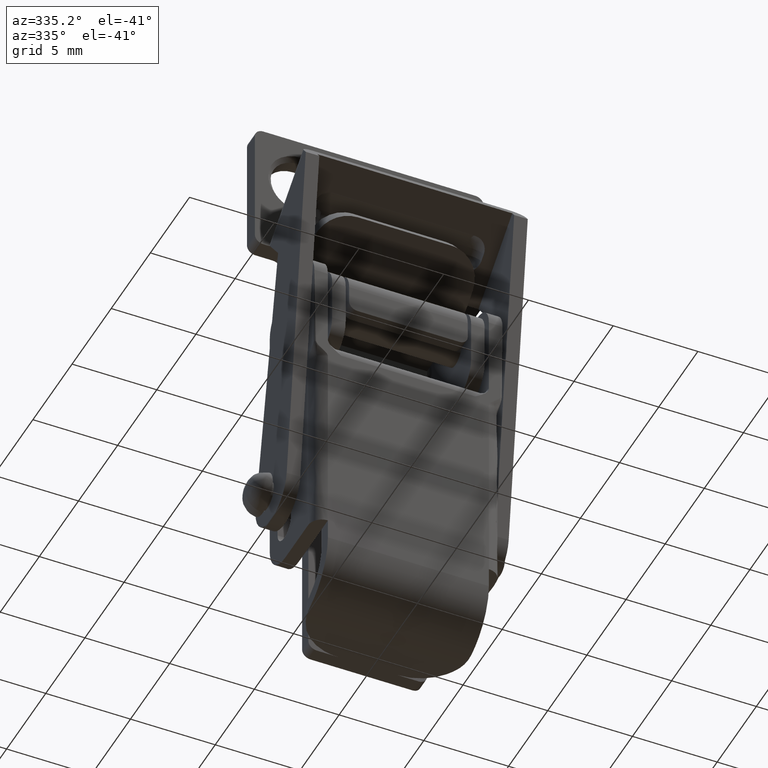
[diagram: clean part render]
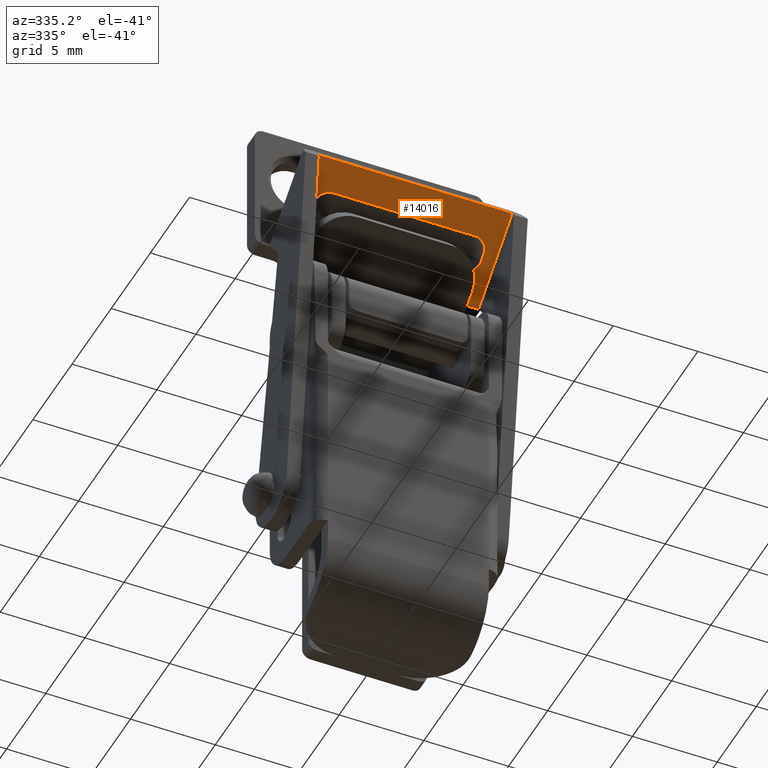
[diagram: same view with one face highlighted and labeled with its STEP entity id]
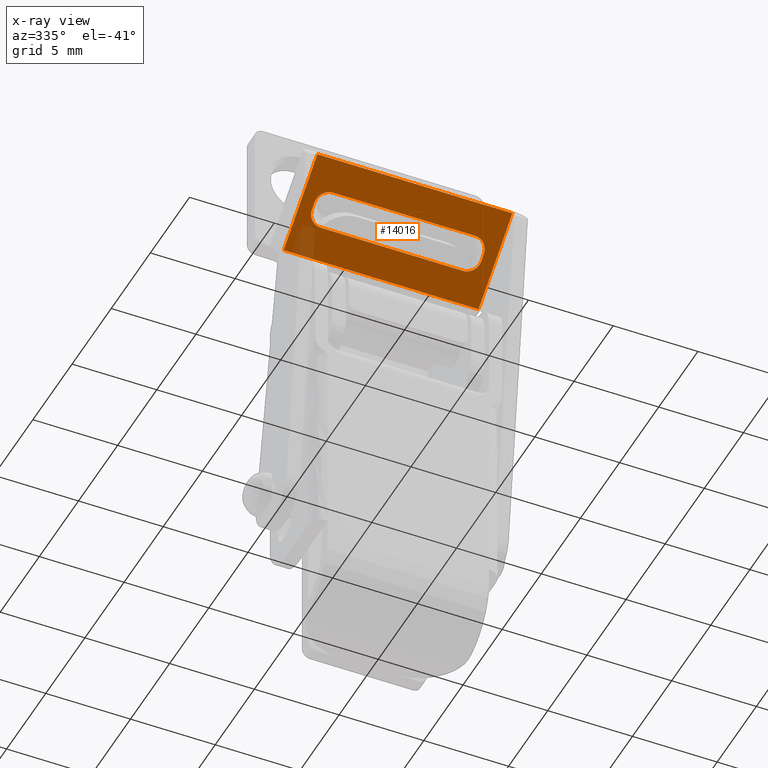
[diagram: x-ray of the same camera — body ghosted, the highlighted face saturated]
A machine part, auxiliary view. The second image highlights one B-rep face of the part: STEP entity #14016.
The next image is the same camera in x-ray: the body ghosted, the highlighted face saturated — about 4% of this face is hidden behind the body in this view.
In plain terms, the highlighted face is a freeform B-spline surface patch.
Its self-contained STEP definition (entity closure, byte-faithful):
#12900=CARTESIAN_POINT('',(4.199997000118859,-3.296525538209980,19.826733328758550));
#12901=VERTEX_POINT('',#12900);
#12902=CARTESIAN_POINT('',(4.999997000000000,-2.669085477892375,19.330428008901499));
#12903=VERTEX_POINT('',#12902);
#12904=CARTESIAN_POINT('',(4.199997000118859,-3.296525538209980,19.826733328758550));
#12905=CARTESIAN_POINT('',(4.291632807445359,-3.296570924567267,19.826769229383981));
#12906=CARTESIAN_POINT('',(4.468313267713660,-3.272456925562150,19.807695047248949));
#12907=CARTESIAN_POINT('',(4.671564565269542,-3.184726196906480,19.738300008422950));
#12908=CARTESIAN_POINT('',(4.800135314752154,-3.088662248901240,19.662313390008229));
#12909=CARTESIAN_POINT('',(4.886145482801003,-2.997715317686914,19.590374333768349));
#12910=CARTESIAN_POINT('',(4.971918964877083,-2.864107334959536,19.484690369997502));
#12911=CARTESIAN_POINT('',(5.000091412144034,-2.746095952517190,19.391343322822870));
#12912=CARTESIAN_POINT('',(4.999997000000000,-2.669085477892375,19.330428008901499));
#12913=B_SPLINE_CURVE_WITH_KNOTS('',3,(#12904,#12905,#12906,#12907,#12908,#12909,#12910,#12911,#12912),.UNSPECIFIED.,.F.,.U.,(4,1,1,1,1,1,4),(0.000000032377196,0.274894574919013,0.530166406167098,0.687232333561736,0.805048952931046,0.962137868241133,1.256668595281883),.UNSPECIFIED.);
#12914=EDGE_CURVE('',#12901,#12903,#12913,.T.);
#12969=CARTESIAN_POINT('',(4.999997000000000,-2.355364199857790,19.082274361902801));
#12970=VERTEX_POINT('',#12969);
#12984=CARTESIAN_POINT('',(4.199997000123855,-1.727924139544080,18.585969042048848));
#12985=VERTEX_POINT('',#12984);
#12999=CARTESIAN_POINT('',(4.999997000000001,-2.355364199857790,19.082274361902801));
#13000=CARTESIAN_POINT('',(4.999997000000001,-1.727924139544081,18.585969042048859));
#13001=CARTESIAN_POINT('',(4.199997000123879,-1.727924139544081,18.585969042048859));
#13009=(BOUNDED_CURVE()B_SPLINE_CURVE(2,(#12999,#13000,#13001),.UNSPECIFIED.,.F.,.U.)CURVE()GEOMETRIC_REPRESENTATION_ITEM()QUASI_UNIFORM_CURVE()RATIONAL_B_SPLINE_CURVE((1.0,0.707106781186548,1.0))REPRESENTATION_ITEM(''));
#13010=EDGE_CURVE('',#12970,#12985,#13009,.T.);
#13039=CARTESIAN_POINT('',(-4.999997000000000,-2.669085477892375,19.330428008901499));
#13040=VERTEX_POINT('',#13039);
#13041=CARTESIAN_POINT('',(-4.199997000118640,-3.296525538209980,19.826733328758550));
#13042=VERTEX_POINT('',#13041);
#13043=CARTESIAN_POINT('',(-4.999997000000000,-2.669085477892375,19.330428008901499));
#13044=CARTESIAN_POINT('',(-5.000033835961524,-2.730687117565781,19.379154928675081));
#13045=CARTESIAN_POINT('',(-4.980554871222506,-2.833334037275619,19.460348680143770));
#13046=CARTESIAN_POINT('',(-4.902542880306083,-2.981067007381006,19.577205514156692));
#13047=CARTESIAN_POINT('',(-4.790350701047523,-3.102824450737543,19.673515696900559));
#13048=CARTESIAN_POINT('',(-4.642505102013396,-3.197960344927245,19.748768224403911));
#13049=CARTESIAN_POINT('',(-4.448652477035092,-3.274501961086288,19.809312671105129));
#13050=CARTESIAN_POINT('',(-4.298187467902457,-3.296599999938732,19.826792228013591));
#13051=CARTESIAN_POINT('',(-4.199997000118640,-3.296525538209980,19.826733328758550));
#13052=B_SPLINE_CURVE_WITH_KNOTS('',3,(#13043,#13044,#13045,#13046,#13047,#13048,#13049,#13050,#13051),.UNSPECIFIED.,.F.,.U.,(4,1,1,1,1,1,4),(0.000000032376741,0.235623145760452,0.392709385173661,0.608702200530427,0.805048952930764,0.962137868240961,1.256668595281934),.UNSPECIFIED.);
#13053=EDGE_CURVE('',#13040,#13042,#13052,.T.);
#13108=CARTESIAN_POINT('',(-4.199997000123634,-1.727924139544080,18.585969042048848));
#13109=VERTEX_POINT('',#13108);
#13123=CARTESIAN_POINT('',(-4.999997000000000,-2.355364199857790,19.082274361902801));
#13124=VERTEX_POINT('',#13123);
#13138=CARTESIAN_POINT('',(-4.199997000123634,-1.727924139544081,18.585969042048859));
#13139=CARTESIAN_POINT('',(-4.999996999999756,-1.727924139544081,18.585969042048859));
#13140=CARTESIAN_POINT('',(-4.999996999999756,-2.355364199857790,19.082274361902801));
#13148=(BOUNDED_CURVE()B_SPLINE_CURVE(2,(#13138,#13139,#13140),.UNSPECIFIED.,.F.,.U.)CURVE()GEOMETRIC_REPRESENTATION_ITEM()QUASI_UNIFORM_CURVE()RATIONAL_B_SPLINE_CURVE((1.0,0.707106781186548,1.0))REPRESENTATION_ITEM(''));
#13149=EDGE_CURVE('',#13109,#13124,#13148,.T.);
#13176=CARTESIAN_POINT('',(4.999997000000000,-2.355364199857790,19.082274361902801));
#13177=CARTESIAN_POINT('',(4.999997000000000,-2.669085477892375,19.330428008901499));
#13178=QUASI_UNIFORM_CURVE('',1,(#13176,#13177),.UNSPECIFIED.,.F.,.U.);
#13179=EDGE_CURVE('',#12970,#12903,#13178,.T.);
#13201=CARTESIAN_POINT('',(4.199997000123855,-1.727924139544080,18.585969042048848));
#13202=CARTESIAN_POINT('',(-4.199997000123634,-1.727924139544080,18.585969042048848));
#13203=QUASI_UNIFORM_CURVE('',1,(#13201,#13202),.UNSPECIFIED.,.F.,.U.);
#13204=EDGE_CURVE('',#12985,#13109,#13203,.T.);
#13224=CARTESIAN_POINT('',(4.199997000118859,-3.296525538209980,19.826733328758550));
#13225=CARTESIAN_POINT('',(-4.199997000118640,-3.296525538209980,19.826733328758550));
#13226=QUASI_UNIFORM_CURVE('',1,(#13224,#13225),.UNSPECIFIED.,.F.,.U.);
#13227=EDGE_CURVE('',#12901,#13042,#13226,.T.);
#13255=CARTESIAN_POINT('',(-4.999997000000000,-2.355364199857790,19.082274361902801));
#13256=CARTESIAN_POINT('',(-4.999997000000000,-2.669085477892375,19.330428008901499));
#13257=QUASI_UNIFORM_CURVE('',1,(#13255,#13256),.UNSPECIFIED.,.F.,.U.);
#13258=EDGE_CURVE('',#13124,#13040,#13257,.T.);
#13659=CARTESIAN_POINT('',(-5.750003000000000,-4.669057090262870,20.912406294253699));
#13660=VERTEX_POINT('',#13659);
#13669=CARTESIAN_POINT('',(-5.750003000000000,-0.355405523575589,17.500306309001250));
#13670=VERTEX_POINT('',#13669);
#13676=CARTESIAN_POINT('',(-5.750003000000000,-0.355405523575589,17.500306309001250));
#13677=CARTESIAN_POINT('',(-5.750003000000000,-4.669057090262870,20.912406294253699));
#13678=QUASI_UNIFORM_CURVE('',1,(#13676,#13677),.UNSPECIFIED.,.F.,.U.);
#13679=EDGE_CURVE('',#13670,#13660,#13678,.T.);
#13695=CARTESIAN_POINT('',(5.749999000000001,-4.669057090262870,20.912406294253699));
#13696=VERTEX_POINT('',#13695);
#13704=CARTESIAN_POINT('',(5.749999000000001,-0.355405523575589,17.500306309001250));
#13705=VERTEX_POINT('',#13704);
#13706=CARTESIAN_POINT('',(5.749999000000001,-0.355405523575589,17.500306309001250));
#13707=CARTESIAN_POINT('',(5.749999000000001,-4.669057090262870,20.912406294253699));
#13708=QUASI_UNIFORM_CURVE('',1,(#13706,#13707),.UNSPECIFIED.,.F.,.U.);
#13709=EDGE_CURVE('',#13705,#13696,#13708,.T.);
#13900=CARTESIAN_POINT('',(5.749999000000001,-0.355405523575589,17.500306309001250));
#13901=CARTESIAN_POINT('',(-5.750003000000000,-0.355405523575589,17.500306309001250));
#13902=QUASI_UNIFORM_CURVE('',1,(#13900,#13901),.UNSPECIFIED.,.F.,.U.);
#13903=EDGE_CURVE('',#13705,#13670,#13902,.T.);
#13985=CARTESIAN_POINT('',(5.749999000000001,-4.669057090262870,20.912406294253699));
#13986=CARTESIAN_POINT('',(-5.750003000000000,-4.669057090262870,20.912406294253699));
#13987=QUASI_UNIFORM_CURVE('',1,(#13985,#13986),.UNSPECIFIED.,.F.,.U.);
#13988=EDGE_CURVE('',#13696,#13660,#13987,.T.);
#13995=CARTESIAN_POINT('',(-6.324428077610765,-4.884523977658209,21.082840681903740));
#13996=CARTESIAN_POINT('',(-6.324428077610765,-0.139938520479095,17.329871829831550));
#13997=CARTESIAN_POINT('',(6.324424386064856,-4.884523977658209,21.082840681903740));
#13998=CARTESIAN_POINT('',(6.324424386064856,-0.139938520479095,17.329871829831550));
#13999=B_SPLINE_SURFACE_WITH_KNOTS('',1,1,((#13995,#13997),(#13996,#13998)),.UNSPECIFIED.,.F.,.F.,.U.,(2,2),(2,2),(0.0,6.049451740868718),(0.0,12.648852463675620),.UNSPECIFIED.);
#14000=ORIENTED_EDGE('',*,*,#13679,.F.);
#14001=ORIENTED_EDGE('',*,*,#13903,.F.);
#14002=ORIENTED_EDGE('',*,*,#13709,.T.);
#14003=ORIENTED_EDGE('',*,*,#13988,.T.);
#14004=EDGE_LOOP('',(#14000,#14001,#14002,#14003));
#14005=FACE_OUTER_BOUND('',#14004,.T.);
#14006=ORIENTED_EDGE('',*,*,#13227,.F.);
#14007=ORIENTED_EDGE('',*,*,#12914,.T.);
#14008=ORIENTED_EDGE('',*,*,#13179,.F.);
#14009=ORIENTED_EDGE('',*,*,#13010,.T.);
#14010=ORIENTED_EDGE('',*,*,#13204,.T.);
#14011=ORIENTED_EDGE('',*,*,#13149,.T.);
#14012=ORIENTED_EDGE('',*,*,#13258,.T.);
#14013=ORIENTED_EDGE('',*,*,#13053,.T.);
#14014=EDGE_LOOP('',(#14006,#14007,#14008,#14009,#14010,#14011,#14012,#14013));
#14015=FACE_BOUND('',#14014,.T.);
#14016=ADVANCED_FACE('',(#14005,#14015),#13999,.T.);